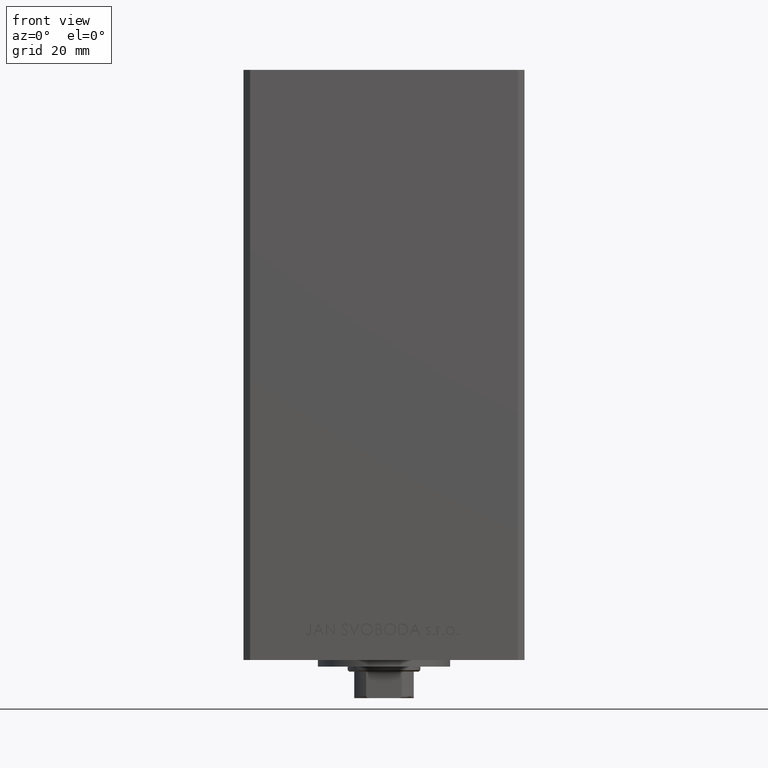
[diagram: clean part render]
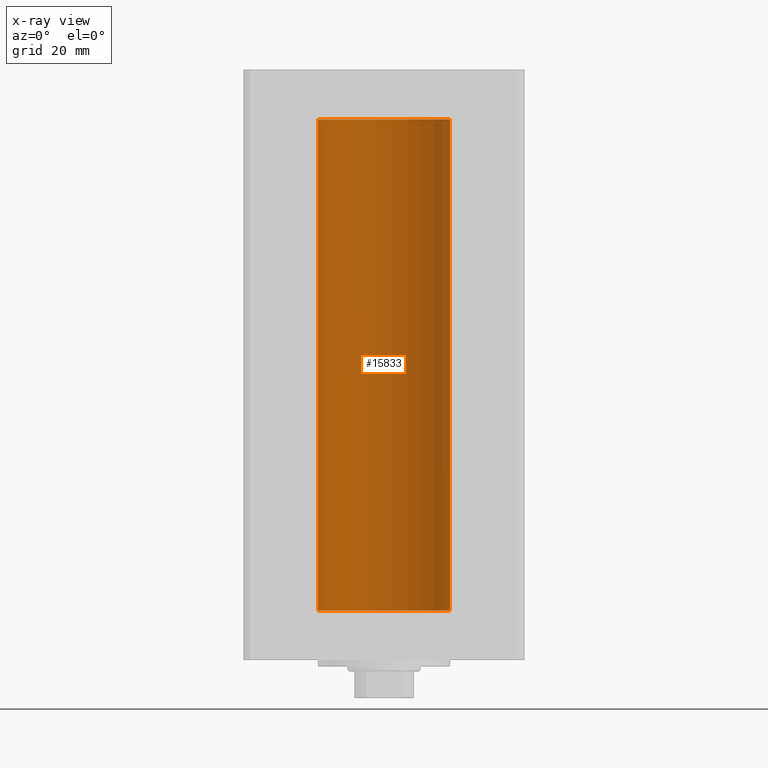
[diagram: x-ray — body ghosted, one internal face saturated and labeled with its STEP entity id]
A machine part, front view, then the same camera in x-ray: the body is ghosted and one INTERNAL B-rep face — a face not visible from any outside direction — is saturated and labeled: STEP entity #15833.
In plain terms, the highlighted cylindrical surface (partial cylindrical patch) has radius 20 mm, axis along (-0, -0, -1).
Its self-contained STEP definition (entity closure, byte-faithful):
#148 = FACE_OUTER_BOUND ( 'NONE', #44607, .T. ) ;
#313 = DIRECTION ( 'NONE',  ( 1.000000000000000000, 0.000000000000000000, 0.000000000000000000 ) ) ;
#1684 = CARTESIAN_POINT ( 'NONE',  ( 20.00000000000000000, 2.449293598294706513E-15, 148.5000000000000000 ) ) ;
#2152 = EDGE_CURVE ( 'NONE', #12032, #48280, #33820, .T. ) ;
#4969 = EDGE_CURVE ( 'NONE', #49084, #12032, #33332, .T. ) ;
#7765 = CARTESIAN_POINT ( 'NONE',  ( 0.000000000000000000, 0.000000000000000000, 148.5000000000000000 ) ) ;
#8278 = AXIS2_PLACEMENT_3D ( 'NONE', #18225, #40380, #18478 ) ;
#8952 = ORIENTED_EDGE ( 'NONE', *, *, #22601, .F. ) ;
#12032 = VERTEX_POINT ( 'NONE', #34843 ) ;
#14616 = VERTEX_POINT ( 'NONE', #26343 ) ;
#14908 = VECTOR ( 'NONE', #15605, 1000.000000000000000 ) ;
#15078 = DIRECTION ( 'NONE',  ( -1.000000000000000000, 0.000000000000000000, 0.000000000000000000 ) ) ;
#15564 = DIRECTION ( 'NONE',  ( -0.000000000000000000, -0.000000000000000000, -1.000000000000000000 ) ) ;
#15605 = DIRECTION ( 'NONE',  ( -0.000000000000000000, -0.000000000000000000, -1.000000000000000000 ) ) ;
#15833 = ADVANCED_FACE ( 'NONE', ( #148 ), #37990, .F. ) ;
#18225 = CARTESIAN_POINT ( 'NONE',  ( 0.000000000000000000, 0.000000000000000000, 0.000000000000000000 ) ) ;
#18478 = DIRECTION ( 'NONE',  ( 1.000000000000000000, 0.000000000000000000, 0.000000000000000000 ) ) ;
#18595 = EDGE_CURVE ( 'NONE', #49084, #14616, #38792, .T. ) ;
#19574 = ORIENTED_EDGE ( 'NONE', *, *, #18595, .F. ) ;
#21581 = ORIENTED_EDGE ( 'NONE', *, *, #4969, .T. ) ;
#22601 = EDGE_CURVE ( 'NONE', #14616, #48280, #29762, .T. ) ;
#23257 = VECTOR ( 'NONE', #39040, 1000.000000000000000 ) ;
#23572 = CARTESIAN_POINT ( 'NONE',  ( -20.00000000000000000, 0.000000000000000000, 148.5000000000000000 ) ) ;
#26343 = CARTESIAN_POINT ( 'NONE',  ( 20.00000000000000000, 2.449293598294706513E-15, 0.000000000000000000 ) ) ;
#29104 = CARTESIAN_POINT ( 'NONE',  ( -20.00000000000000000, 0.000000000000000000, 0.000000000000000000 ) ) ;
#29762 = CIRCLE ( 'NONE', #8278, 20.00000000000000000 ) ;
#30026 = CARTESIAN_POINT ( 'NONE',  ( 0.000000000000000000, 0.000000000000000000, 148.5000000000000000 ) ) ;
#30124 = AXIS2_PLACEMENT_3D ( 'NONE', #7765, #31175, #313 ) ;
#31175 = DIRECTION ( 'NONE',  ( -0.000000000000000000, 0.000000000000000000, 1.000000000000000000 ) ) ;
#32056 = CARTESIAN_POINT ( 'NONE',  ( 20.00000000000000000, 2.449293598294706513E-15, 148.5000000000000000 ) ) ;
#33332 = CIRCLE ( 'NONE', #30124, 20.00000000000000000 ) ;
#33820 = LINE ( 'NONE', #23572, #14908 ) ;
#34843 = CARTESIAN_POINT ( 'NONE',  ( -20.00000000000000000, 0.000000000000000000, 148.5000000000000000 ) ) ;
#37990 = CYLINDRICAL_SURFACE ( 'NONE', #48657, 20.00000000000000000 ) ;
#38792 = LINE ( 'NONE', #32056, #23257 ) ;
#39040 = DIRECTION ( 'NONE',  ( -0.000000000000000000, -0.000000000000000000, -1.000000000000000000 ) ) ;
#40380 = DIRECTION ( 'NONE',  ( -0.000000000000000000, 0.000000000000000000, 1.000000000000000000 ) ) ;
#40441 = ORIENTED_EDGE ( 'NONE', *, *, #2152, .T. ) ;
#44607 = EDGE_LOOP ( 'NONE', ( #19574, #21581, #40441, #8952 ) ) ;
#48280 = VERTEX_POINT ( 'NONE', #29104 ) ;
#48657 = AXIS2_PLACEMENT_3D ( 'NONE', #30026, #15564, #15078 ) ;
#49084 = VERTEX_POINT ( 'NONE', #1684 ) ;